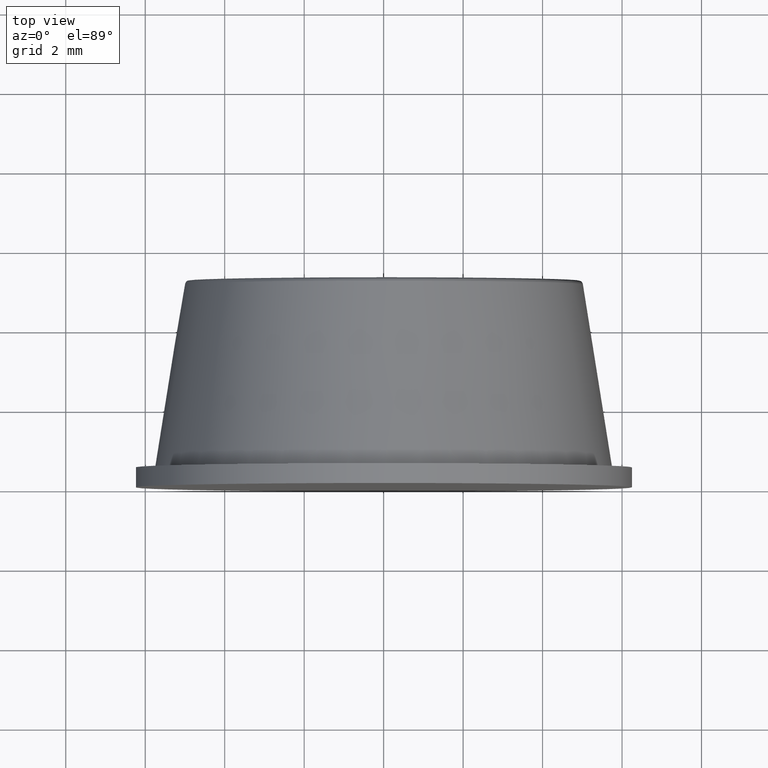
[diagram: clean part render]
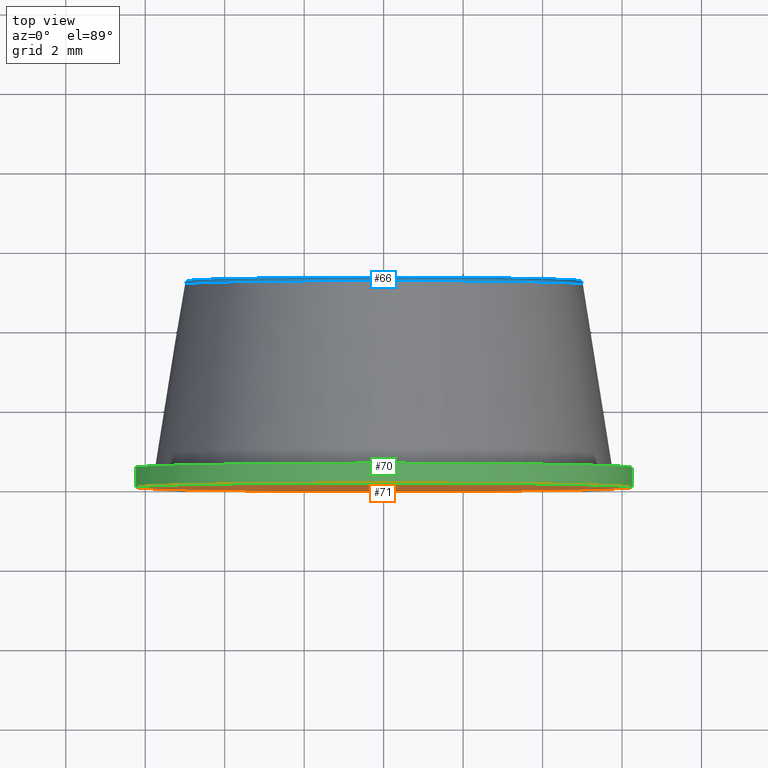
[diagram: same view with three faces highlighted in distinct colors, each labeled with its STEP entity id]
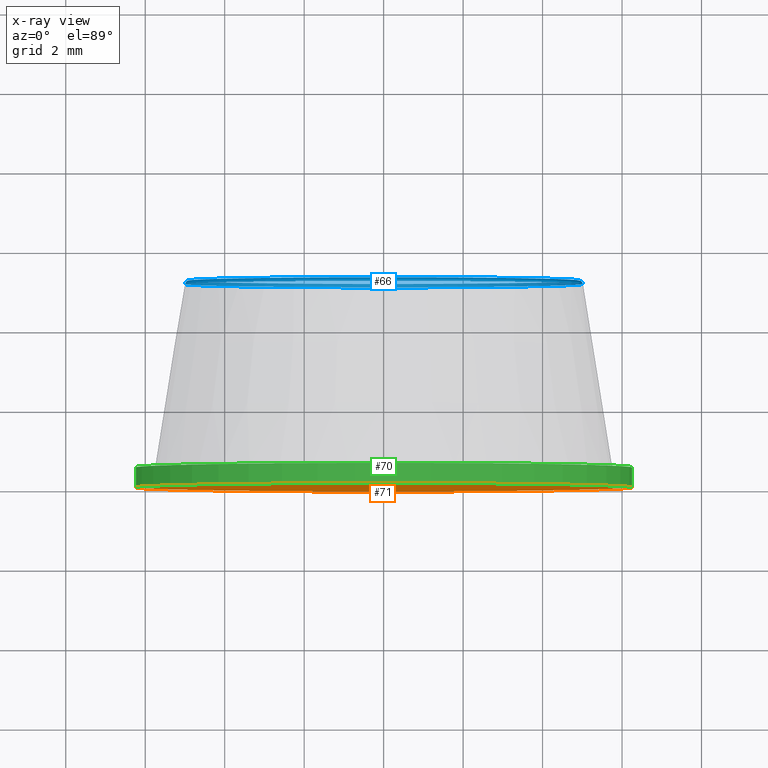
[diagram: x-ray of the same camera — body ghosted, the three highlighted faces saturated]
A machine part, top view with three faces highlighted in distinct colors.
The next image is the same camera in x-ray (body ghosted, the three faces saturated) — at least one of them is partly hidden behind the body in this view.
Their STEP definitions:

[orange] entity #71 — the highlighted planar face has unit normal (0, -1, 0).
#19=PLANE('',#84);
#29=FACE_OUTER_BOUND('',#39,.T.);
#39=EDGE_LOOP('',(#64));
#44=CIRCLE('',#83,6.25);
#49=VERTEX_POINT('',#123);
#54=EDGE_CURVE('',#49,#49,#44,.T.);
#64=ORIENTED_EDGE('',*,*,#54,.T.);
#71=ADVANCED_FACE('',(#29),#19,.T.);
#83=AXIS2_PLACEMENT_3D('',#124,#105,#106);
#84=AXIS2_PLACEMENT_3D('',#125,#107,#108);
#105=DIRECTION('center_axis',(6.12323399573676E-17,-1.,0.));
#106=DIRECTION('ref_axis',(1.,6.12323399573676E-17,0.));
#107=DIRECTION('center_axis',(6.12323399573676E-17,-1.,0.));
#108=DIRECTION('ref_axis',(0.,0.,-1.));
#123=CARTESIAN_POINT('',(6.25,0.,0.));
#124=CARTESIAN_POINT('Origin',(2.34337466040915E-32,-3.82702124733548E-16,
0.));
#125=CARTESIAN_POINT('Origin',(0.,0.,0.));

[blue] entity #66 — the highlighted toroidal blend (fillet) surface has major radius 4.9147 mm and minor (blend) radius 0.1 mm.
#20=FACE_BOUND('',#31,.T.);
#24=FACE_OUTER_BOUND('',#30,.T.);
#30=EDGE_LOOP('',(#55));
#31=EDGE_LOOP('',(#56));
#40=CIRCLE('',#75,4.9146922498816);
#41=CIRCLE('',#76,5.01344286019461);
#45=VERTEX_POINT('',#111);
#46=VERTEX_POINT('',#113);
#50=EDGE_CURVE('',#45,#45,#40,.T.);
#51=EDGE_CURVE('',#46,#46,#41,.T.);
#55=ORIENTED_EDGE('',*,*,#50,.T.);
#56=ORIENTED_EDGE('',*,*,#51,.T.);
#65=TOROIDAL_SURFACE('',#74,4.9146922498816,0.1);
#66=ADVANCED_FACE('',(#24,#20),#65,.T.);
#74=AXIS2_PLACEMENT_3D('',#110,#87,#88);
#75=AXIS2_PLACEMENT_3D('',#112,#89,#90);
#76=AXIS2_PLACEMENT_3D('',#114,#91,#92);
#87=DIRECTION('center_axis',(6.12323399573676E-17,-1.,0.));
#88=DIRECTION('ref_axis',(0.,0.,-1.));
#89=DIRECTION('center_axis',(6.12323399573676E-17,-1.,0.));
#90=DIRECTION('ref_axis',(-1.,-6.12323399573676E-17,1.22464679914735E-16));
#91=DIRECTION('center_axis',(0.,1.,0.));
#92=DIRECTION('ref_axis',(-1.,0.,2.45858025867674E-32));
#110=CARTESIAN_POINT('Origin',(-3.12284933782575E-16,5.1,0.));
#111=CARTESIAN_POINT('',(4.9146922498816,5.2,-1.23259516440783E-31));
#112=CARTESIAN_POINT('Origin',(-3.18408167778312E-16,5.2,0.));
#113=CARTESIAN_POINT('',(5.01344286019461,5.11575807611378,-1.2279393502891E-15));
#114=CARTESIAN_POINT('Origin',(0.,5.11575807611378,-6.13969675144548E-16));

[green] entity #70 — the highlighted cylindrical surface (bore or boss wall) has radius 6.25 mm, axis along (0, -1, 0).
#15=CYLINDRICAL_SURFACE('',#82,6.25);
#23=FACE_BOUND('',#38,.T.);
#28=FACE_OUTER_BOUND('',#37,.T.);
#37=EDGE_LOOP('',(#62));
#38=EDGE_LOOP('',(#63));
#43=CIRCLE('',#81,6.25);
#44=CIRCLE('',#83,6.25);
#48=VERTEX_POINT('',#120);
#49=VERTEX_POINT('',#123);
#53=EDGE_CURVE('',#48,#48,#43,.T.);
#54=EDGE_CURVE('',#49,#49,#44,.T.);
#62=ORIENTED_EDGE('',*,*,#53,.T.);
#63=ORIENTED_EDGE('',*,*,#54,.F.);
#70=ADVANCED_FACE('',(#28,#23),#15,.T.);
#81=AXIS2_PLACEMENT_3D('',#121,#101,#102);
#82=AXIS2_PLACEMENT_3D('',#122,#103,#104);
#83=AXIS2_PLACEMENT_3D('',#124,#105,#106);
#101=DIRECTION('center_axis',(6.12323399573676E-17,-1.,0.));
#102=DIRECTION('ref_axis',(1.,6.12323399573676E-17,0.));
#103=DIRECTION('center_axis',(6.12323399573676E-17,-1.,0.));
#104=DIRECTION('ref_axis',(1.,0.,0.));
#105=DIRECTION('center_axis',(6.12323399573676E-17,-1.,0.));
#106=DIRECTION('ref_axis',(1.,6.12323399573676E-17,0.));
#120=CARTESIAN_POINT('',(6.25,0.5,0.));
#121=CARTESIAN_POINT('Origin',(-3.06161699786838E-17,0.5,0.));
#122=CARTESIAN_POINT('Origin',(-1.53080849893419E-17,0.25,0.));
#123=CARTESIAN_POINT('',(6.25,0.,0.));
#124=CARTESIAN_POINT('Origin',(2.34337466040915E-32,-3.82702124733548E-16,
0.));